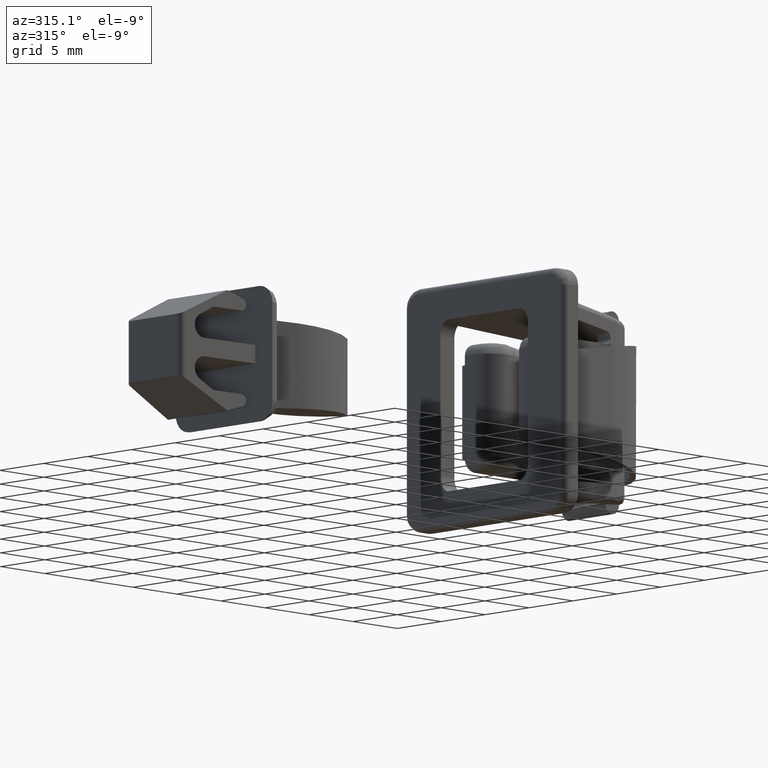
[diagram: clean part render]
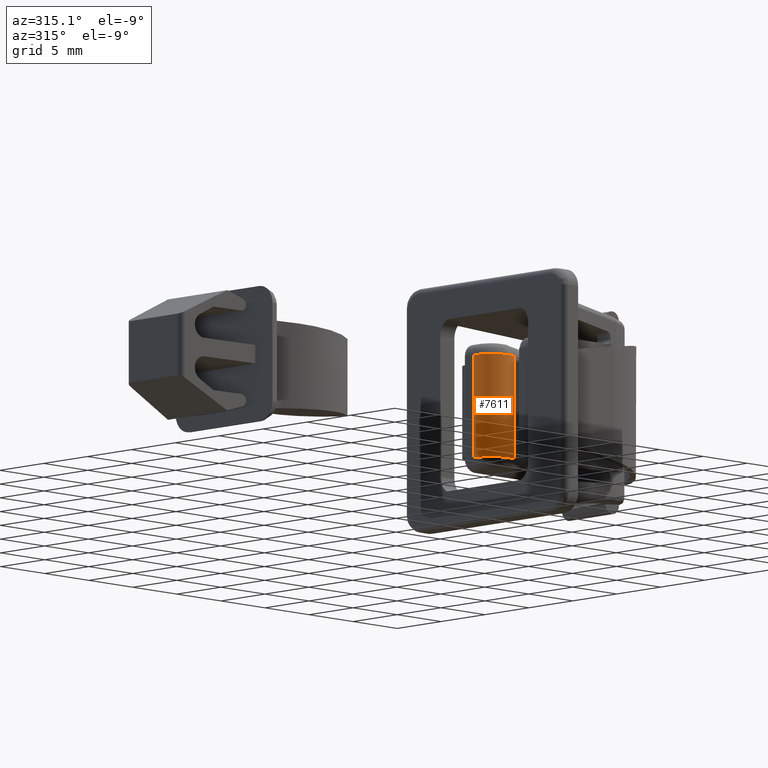
[diagram: same view with one face highlighted and labeled with its STEP entity id]
A machine part, auxiliary view. The second image highlights one B-rep face of the part: STEP entity #7611.
In plain terms, the highlighted face is a freeform B-spline surface patch.
Its self-contained STEP definition (entity closure, byte-faithful):
#7052=CARTESIAN_POINT('',(4.552167671598450,1.146833996298796,-4.190498000000045));
#7053=VERTEX_POINT('',#7052);
#7066=CARTESIAN_POINT('',(1.799987000000100,3.0,-4.190498000000045));
#7067=VERTEX_POINT('',#7066);
#7068=CARTESIAN_POINT('',(1.799987000000100,3.0,-4.190498000000045));
#7069=CARTESIAN_POINT('',(1.799930182774562,2.826776827847795,-4.190498000000044));
#7070=CARTESIAN_POINT('',(1.837299171927947,2.541506043374950,-4.190498000000043));
#7071=CARTESIAN_POINT('',(1.971762053971865,2.166060478494849,-4.190498000000043));
#7072=CARTESIAN_POINT('',(2.157117553079547,1.836216883158713,-4.190498000000048));
#7073=CARTESIAN_POINT('',(2.438115691071169,1.509715168962790,-4.190498000000057));
#7074=CARTESIAN_POINT('',(2.804919946598677,1.246118251916818,-4.190498000000043));
#7075=CARTESIAN_POINT('',(3.210205877412444,1.074026914118665,-4.190498000000035));
#7076=CARTESIAN_POINT('',(3.592237439853597,0.998487891097593,-4.190498000000075));
#7077=CARTESIAN_POINT('',(4.052390876319106,0.996564963301810,-4.190498000000012));
#7078=CARTESIAN_POINT('',(4.363368991251662,1.070086170153430,-4.190498000000098));
#7079=CARTESIAN_POINT('',(4.552167671598450,1.146833996298796,-4.190498000000045));
#7080=B_SPLINE_CURVE_WITH_KNOTS('',3,(#7068,#7069,#7070,#7071,#7072,#7073,#7074,#7075,#7076,#7077,#7078,#7079),.UNSPECIFIED.,.F.,.U.,(4,1,1,1,1,1,1,1,1,4),(0.000000079181429,0.519653375336572,0.855917012943472,1.192180991893042,1.650721639612559,2.139779767465013,2.537187854778881,2.965153212107957,3.301415635974078,3.912777178072603),.UNSPECIFIED.);
#7081=EDGE_CURVE('',#7067,#7053,#7080,.T.);
#7191=CARTESIAN_POINT('',(1.799987000000100,3.0,4.190499000000000));
#7192=VERTEX_POINT('',#7191);
#7207=CARTESIAN_POINT('',(4.552167671598450,1.146833996298796,4.190499000000000));
#7208=VERTEX_POINT('',#7207);
#7209=CARTESIAN_POINT('',(4.552167671598450,1.146833996298796,4.190499000000000));
#7210=CARTESIAN_POINT('',(4.391683200757931,1.081638320442502,4.190499000000009));
#7211=CARTESIAN_POINT('',(4.073535276571134,0.998574771312423,4.190498999999991));
#7212=CARTESIAN_POINT('',(3.560720923791288,0.992816966005177,4.190499000000010));
#7213=CARTESIAN_POINT('',(3.151183552167693,1.093513895549551,4.190499000000002));
#7214=CARTESIAN_POINT('',(2.800196973609233,1.258720567887462,4.190499000000001));
#7215=CARTESIAN_POINT('',(2.486128774521498,1.470134895645838,4.190499000000007));
#7216=CARTESIAN_POINT('',(2.211043896285134,1.761541333672676,4.190498999999997));
#7217=CARTESIAN_POINT('',(2.008031875621740,2.092602487666369,4.190499000000003));
#7218=CARTESIAN_POINT('',(1.848703291090261,2.480397202754636,4.190498999999991));
#7219=CARTESIAN_POINT('',(1.799881708996035,2.796199258778666,4.190499000000021));
#7220=CARTESIAN_POINT('',(1.799987000000100,3.0,4.190499000000000));
#7221=B_SPLINE_CURVE_WITH_KNOTS('',3,(#7209,#7210,#7211,#7212,#7213,#7214,#7215,#7216,#7217,#7218,#7219,#7220),.UNSPECIFIED.,.F.,.U.,(4,1,1,1,1,1,1,1,1,4),(0.000000079180401,0.519653375335661,0.978194906137297,1.528444427633552,1.772998650919529,2.139779767464535,2.659466181715274,2.965153212107675,3.301415635973887,3.912777178072607),.UNSPECIFIED.);
#7222=EDGE_CURVE('',#7208,#7192,#7221,.T.);
#7583=CARTESIAN_POINT('',(4.568310749778958,1.153468490513701,-4.400022925000046));
#7584=CARTESIAN_POINT('',(4.568310749778958,1.153468490513701,4.405262048125001));
#7585=CARTESIAN_POINT('',(1.613242616185742,-0.076106535739703,-4.400022925000045));
#7586=CARTESIAN_POINT('',(1.613242616185742,-0.076106535739703,4.405262048125001));
#7587=CARTESIAN_POINT('',(1.803524509674158,3.118901323464186,-4.400022925000046));
#7588=CARTESIAN_POINT('',(1.803524509674158,3.118901323464186,4.405262048125001));
#7596=(BOUNDED_SURFACE()B_SPLINE_SURFACE(1,2,((#7583,#7585,#7587),(#7584,#7586,#7588)),.UNSPECIFIED.,.F.,.F.,.U.)B_SPLINE_SURFACE_WITH_KNOTS((2,2),(3,3),(0.0,8.805284973125048),(0.0,4.434472411622149),.UNSPECIFIED.)GEOMETRIC_REPRESENTATION_ITEM()RATIONAL_B_SPLINE_SURFACE(((1.0,0.529919264233205,1.0),(1.0,0.529919264233205,1.0)))REPRESENTATION_ITEM('')SURFACE());
#7597=CARTESIAN_POINT('',(1.799987000000100,3.0,-4.190498000000045));
#7598=CARTESIAN_POINT('',(1.799987000000100,3.0,4.190499000000000));
#7599=QUASI_UNIFORM_CURVE('',1,(#7597,#7598),.UNSPECIFIED.,.F.,.U.);
#7600=EDGE_CURVE('',#7067,#7192,#7599,.T.);
#7601=ORIENTED_EDGE('',*,*,#7600,.F.);
#7602=ORIENTED_EDGE('',*,*,#7081,.T.);
#7603=CARTESIAN_POINT('',(4.552167671598450,1.146833996298796,-4.190498000000045));
#7604=CARTESIAN_POINT('',(4.552167671598450,1.146833996298796,4.190499000000000));
#7605=QUASI_UNIFORM_CURVE('',1,(#7603,#7604),.UNSPECIFIED.,.F.,.U.);
#7606=EDGE_CURVE('',#7053,#7208,#7605,.T.);
#7607=ORIENTED_EDGE('',*,*,#7606,.T.);
#7608=ORIENTED_EDGE('',*,*,#7222,.T.);
#7609=EDGE_LOOP('',(#7601,#7602,#7607,#7608));
#7610=FACE_OUTER_BOUND('',#7609,.T.);
#7611=ADVANCED_FACE('',(#7610),#7596,.T.);